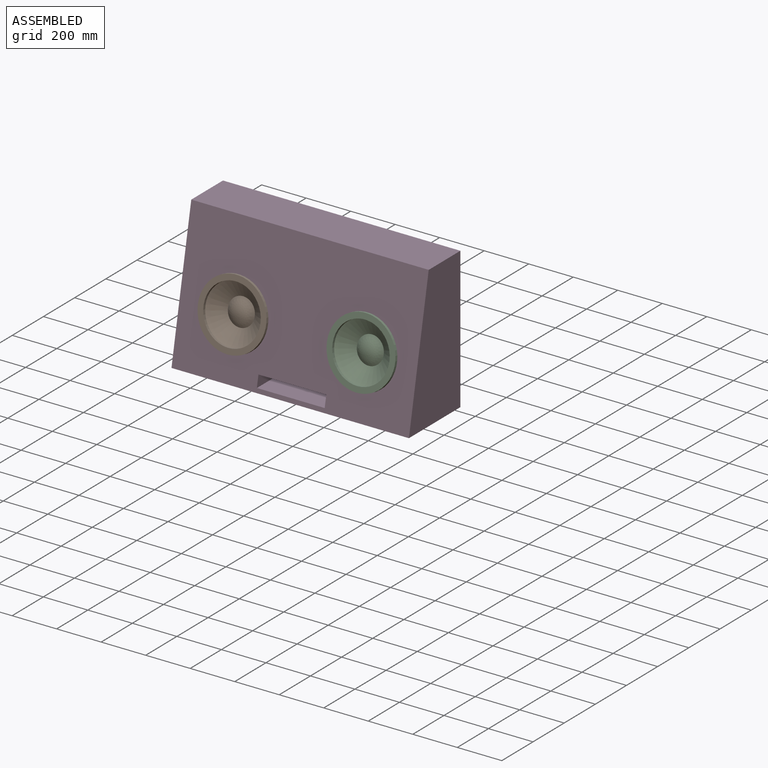
[diagram: assembled view]
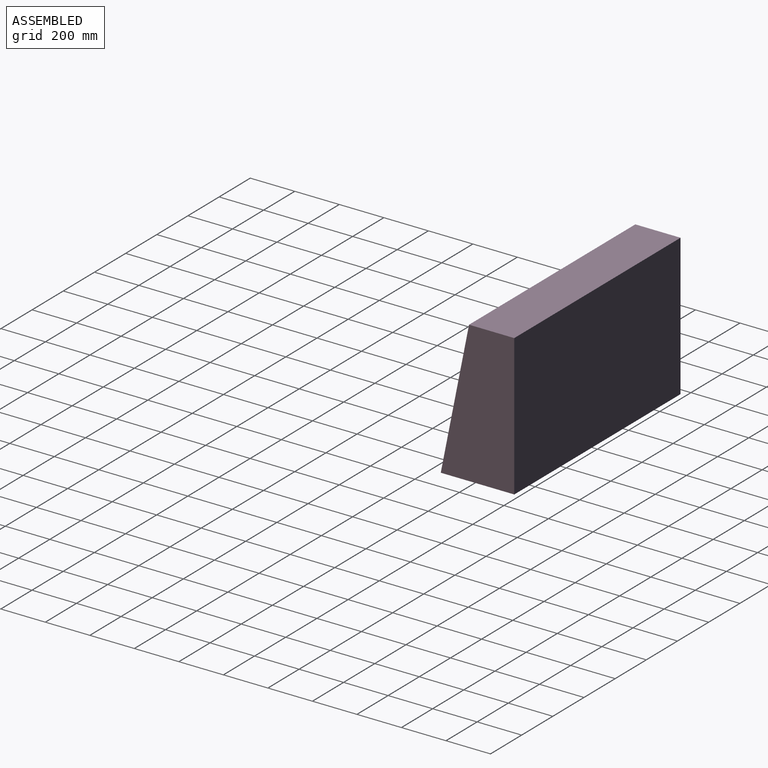
[diagram: assembled view, second angle]
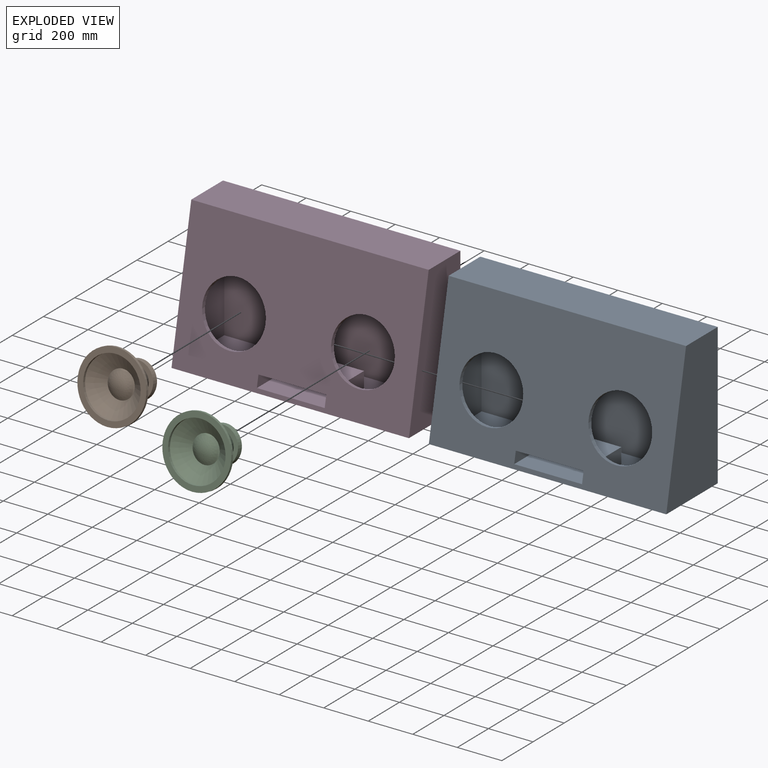
[diagram: exploded view]
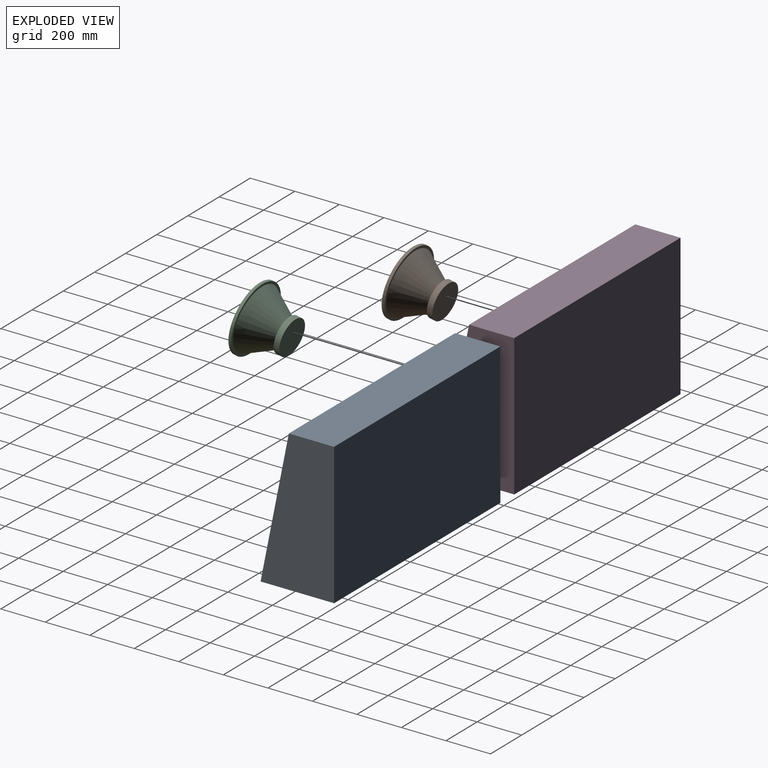
[diagram: exploded view, second angle]
ASSEMBLY  parts=3 mates=2
PART A: 11 faces, bbox 306.9x306.9x177.8 mm
  f0: plane 160.02x160.02mm, normal (0,0,-1), area 20112.2mm2, adj f1
  f1: cylinder r=80.01mm len=160.02mm, axis (0,0,1), area 12769.4mm2, adj f0,f2
  f2: plane 160.02x160.02mm, normal (0,0,1), area 8644.7mm2, adj f1,f3
  f3: cone r=60.42mm half-angle=30.3deg, axis (0,0,1), area 102927.7mm2, adj f2,f4
  f4: plane 306.93x306.93mm, normal (0,0,-1), area 10587.6mm2, adj f3,f5
  f5: cylinder r=153.47mm len=306.93mm, axis (0,0,1), area 12246mm2, adj f4,f6
  f6: plane 306.93x306.93mm, normal (0,0,1), area 22465.2mm2, adj f5,f7
  f7: cylinder r=128.07mm len=256.13mm, axis (0,0,1), area 10219.2mm2, adj f6,f8
  f8: plane 273.86x273.86mm, normal (0,0,-1), area 7379.6mm2, adj f7,f9
  f9: cone r=136.93mm half-angle=57.6deg, axis (0,0,1), area 56171mm2, adj f8
  f10: revolved ~120.83x60.42mm, area 0mm2
PART B: same geometry as A
PART C: 21 faces, bbox 1066.8x330.2x635 mm
  f0: plane 304.8x214.63mm, normal (0,0,-1), area 65419.2mm2, adj f1,f2,f3,f20
  f1: plane 224.79x50.8mm, normal (-1,0,0), area 11161.3mm2, adj f0,f3,f9,f20
  f2: plane 224.79x50.8mm, normal (1,0,0), area 11161.3mm2, adj f0,f3,f9,f20
  f3: plane 1066.8x635mm, normal (0,-0.98,0.2), area 548203.9mm2, adj f0,f1,f2,f5,f6,f7,f8,f9
  f4: plane 1066.8x635mm, normal (0,1,0), area 677418mm2, adj f5,f6,f7,f8
  f5: plane 1066.8x203.2mm, normal (0,0,1), area 216773.8mm2, adj f3,f4,f7,f8
  f6: plane 1066.8x330.2mm, normal (0,0,-1), area 352257.4mm2, adj f3,f4,f7,f8
  f7: plane 635x330.2mm, normal (1,0,0), area 169354.5mm2, adj f3,f4,f5,f6
  f8: plane 635x330.2mm, normal (-1,0,0), area 169354.5mm2, adj f3,f4,f5,f6
  f9: plane 1028.7x307.34mm, normal (0,0,1), area 294272.9mm2, adj f1,f2,f3,f10,f11,f13,f14,f17
  f10: plane 1028.7x596.9mm, normal (0,-1,0), area 614031mm2, adj f9,f12,f13,f14
  f11: plane 1028.7x596.9mm, normal (0,0.98,-0.2), area 474926.2mm2, adj f9,f12,f13,f14,f15,f16,f17,f18
  f12: plane 1028.7x168.53mm, normal (0,0,-1), area 173369.6mm2, adj f10,f11,f13,f14
  f13: plane 596.9x287.91mm, normal (-1,0,0), area 136226.2mm2, adj f9,f10,f11,f12
  f14: plane 596.9x287.91mm, normal (1,0,0), area 136226.2mm2, adj f9,f10,f11,f12
  f15: cylinder r=142.08mm len=284.16mm, axis (0,-0.98,0.2), area 17006.4mm2, adj f3,f11
  f16: cylinder r=142.08mm len=284.16mm, axis (0,-0.98,0.2), area 17006.4mm2, adj f3,f11
  f17: plane 205.36x69.85mm, normal (1,0,0), area 13856.7mm2, adj f9,f11,f18,f20
  f18: plane 342.9x191.39mm, normal (0,0,1), area 65628.6mm2, adj f11,f17,f19,f20
  f19: plane 205.36x69.85mm, normal (-1,0,0), area 13856.7mm2, adj f9,f11,f18,f20
  f20: plane 342.9x69.85mm, normal (0,1,0), area 8467.7mm2, adj f0,f1,f2,f9,f17,f18,f19
PLACE A rot(axis=(1,0,0),78.7deg) t=(-289.72,-205.38,249.45)mm
PLACE B rot(axis=(1,0,0),78.7deg) t=(289.72,-205.38,249.45)mm
PLACE C at identity fixed
MATE cylindrical A.f3 <-> C.f16  axis (0,0.98,-0.2) through (-289.72,-277.43,263.86)mm
MATE cylindrical B.f3 <-> C.f15  axis (0,0.98,-0.2) through (289.72,-277.43,263.86)mm
